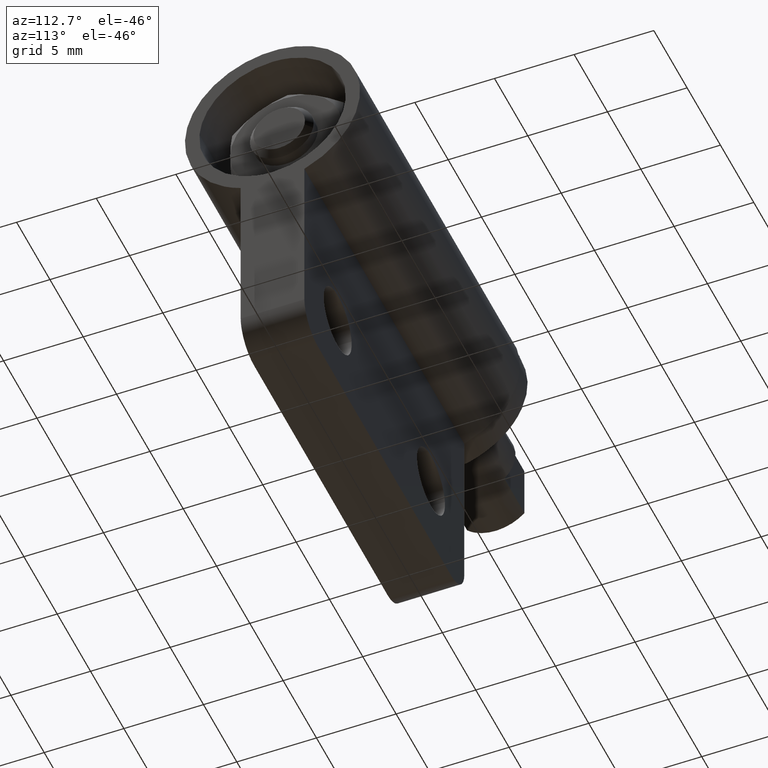
[diagram: clean part render]
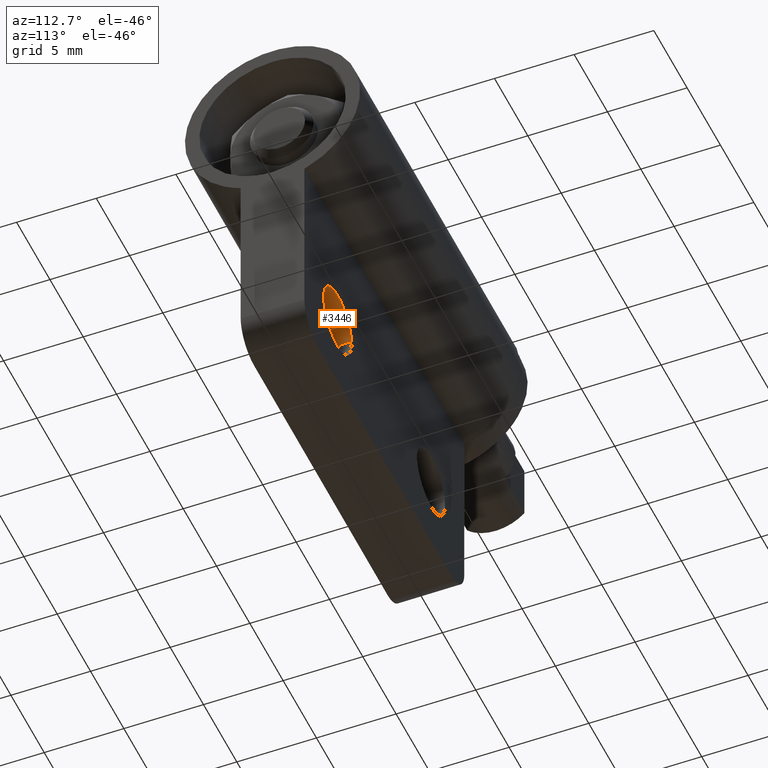
[diagram: same view with one face highlighted and labeled with its STEP entity id]
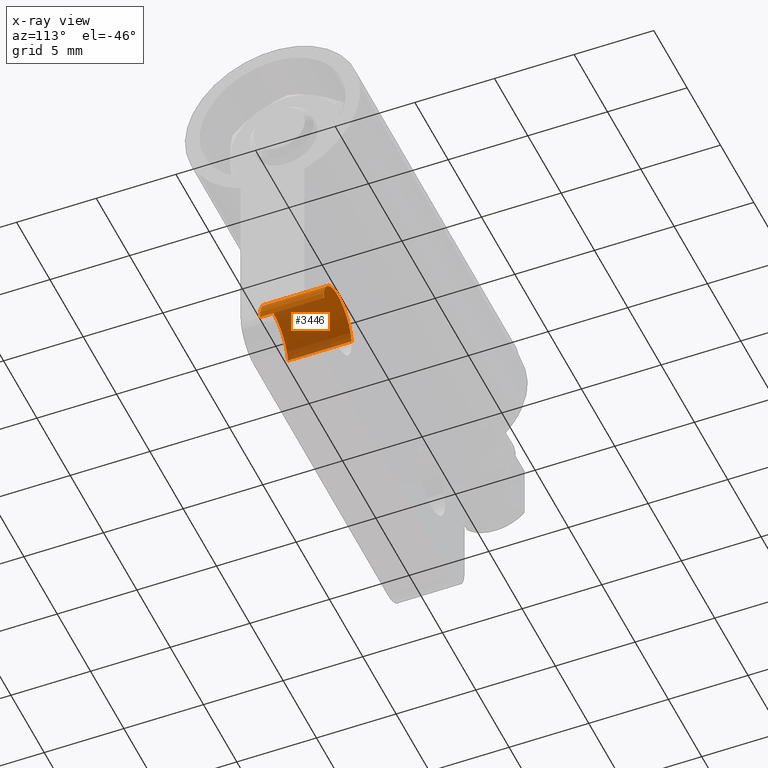
[diagram: x-ray of the same camera — body ghosted, the highlighted face saturated]
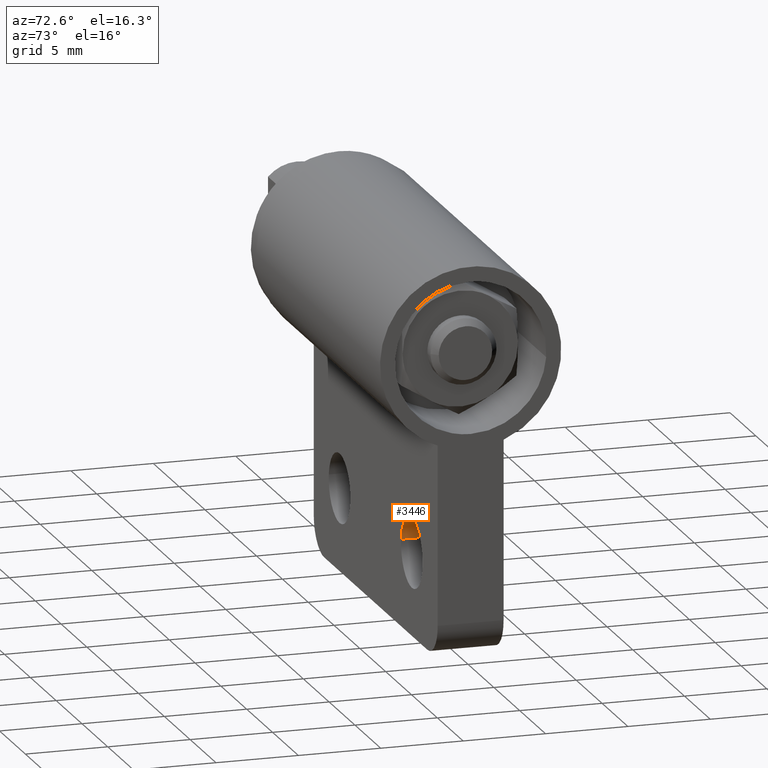
[diagram: same view with one face highlighted and labeled with its STEP entity id]
A machine part, auxiliary view. The second image highlights one B-rep face of the part: STEP entity #3446.
The next image is the same camera in x-ray: the body ghosted, the highlighted face saturated — about 53% of this face is hidden behind the body in this view.
A second angle (auxiliary view) of the same face is appended — the face is thin or edge-on in the first view.
In plain terms, the highlighted face is a freeform B-spline surface patch.
Its self-contained STEP definition (entity closure, byte-faithful):
#3283=CARTESIAN_POINT('',(23.414679958542148,1.999999999999999,-12.752128410877519));
#3284=VERTEX_POINT('',#3283);
#3302=CARTESIAN_POINT('',(23.414679958975899,-2.0,-12.752128407228319));
#3303=VERTEX_POINT('',#3302);
#3304=CARTESIAN_POINT('',(23.414679958542148,1.999999999999999,-12.752128410877519));
#3305=CARTESIAN_POINT('',(23.414679958975899,-2.0,-12.752128407228319));
#3306=QUASI_UNIFORM_CURVE('',1,(#3304,#3305),.UNSPECIFIED.,.F.,.U.);
#3307=EDGE_CURVE('',#3284,#3303,#3306,.T.);
#3326=CARTESIAN_POINT('',(27.596083076684572,-2.0,-13.128201933045361));
#3327=VERTEX_POINT('',#3326);
#3341=CARTESIAN_POINT('',(27.596083076684572,2.0,-13.128201933045361));
#3342=VERTEX_POINT('',#3341);
#3343=CARTESIAN_POINT('',(27.596083076684572,2.0,-13.128201933045361));
#3344=CARTESIAN_POINT('',(27.596083076684572,-2.0,-13.128201933045361));
#3345=QUASI_UNIFORM_CURVE('',1,(#3343,#3344),.UNSPECIFIED.,.F.,.U.);
#3346=EDGE_CURVE('',#3342,#3327,#3345,.T.);
#3364=CARTESIAN_POINT('',(27.596083076685922,2.100000000000000,-13.128201933023201));
#3365=CARTESIAN_POINT('',(27.724285009709124,2.100000000000000,-11.032118856337279));
#3366=CARTESIAN_POINT('',(25.628201933023199,2.100000000000000,-10.903916923314080));
#3367=CARTESIAN_POINT('',(23.648758669237040,2.100000000000000,-10.782848986861692));
#3368=CARTESIAN_POINT('',(23.414679994636302,2.100000000000000,-12.752128107220809));
#3369=CARTESIAN_POINT('',(27.596083076685922,-2.102500000000000,-13.128201933023201));
#3370=CARTESIAN_POINT('',(27.724285009709124,-2.102500000000000,-11.032118856337279));
#3371=CARTESIAN_POINT('',(25.628201933023199,-2.102500000000000,-10.903916923314080));
#3372=CARTESIAN_POINT('',(23.648758669237040,-2.102500000000001,-10.782848986861692));
#3373=CARTESIAN_POINT('',(23.414679994636302,-2.102500000000000,-12.752128107220809));
#3381=(BOUNDED_SURFACE()B_SPLINE_SURFACE(2,1,((#3364,#3369),(#3365,#3370),(#3366,#3371),(#3367,#3372),(#3368,#3373)),.UNSPECIFIED.,.F.,.F.,.U.)B_SPLINE_SURFACE_WITH_KNOTS((3,2,3),(2,2),(0.0,3.479393923933997,6.819612090910635),(0.0,4.202500000000001),.UNSPECIFIED.)GEOMETRIC_REPRESENTATION_ITEM()RATIONAL_B_SPLINE_SURFACE(((1.0,1.0),(0.707106781186548,0.707106781186548),(1.0,1.0),(0.718822509939086,0.718822509939086),(0.977505800795127,0.977505800795127)))REPRESENTATION_ITEM('')SURFACE());
#3382=CARTESIAN_POINT('',(25.500000000000000,2.0,-10.900000000000000));
#3383=VERTEX_POINT('',#3382);
#3384=CARTESIAN_POINT('',(25.500000000000000,2.0,-10.900000000000000));
#3385=CARTESIAN_POINT('',(23.634832948480597,2.0,-10.899999999999999));
#3386=CARTESIAN_POINT('',(23.414679958542148,2.000000000000000,-12.752128410877519));
#3394=(BOUNDED_CURVE()B_SPLINE_CURVE(2,(#3384,#3385,#3386),.UNSPECIFIED.,.F.,.U.)B_SPLINE_CURVE_WITH_KNOTS((3,3),(0.0,0.229562522734923),.UNSPECIFIED.)CURVE()GEOMETRIC_REPRESENTATION_ITEM()RATIONAL_B_SPLINE_CURVE((1.0,0.731050775188928,0.956026850659709))REPRESENTATION_ITEM(''));
#3395=EDGE_CURVE('',#3383,#3284,#3394,.T.);
#3396=ORIENTED_EDGE('',*,*,#3395,.F.);
#3397=CARTESIAN_POINT('',(27.596083076684568,2.0,-13.128201933045359));
#3398=CARTESIAN_POINT('',(27.599999999999998,2.000000000000000,-13.064160802949258));
#3399=CARTESIAN_POINT('',(27.600000000000001,2.0,-13.0));
#3400=CARTESIAN_POINT('',(27.599999999999994,2.000000000000000,-10.900000000000000));
#3401=CARTESIAN_POINT('',(25.500000000000000,2.0,-10.900000000000000));
#3409=(BOUNDED_CURVE()B_SPLINE_CURVE(2,(#3397,#3398,#3399,#3400,#3401),.UNSPECIFIED.,.F.,.U.)B_SPLINE_CURVE_WITH_KNOTS((3,2,3),(0.739332962238320,0.750000000000000,1.0),.UNSPECIFIED.)CURVE()GEOMETRIC_REPRESENTATION_ITEM()RATIONAL_B_SPLINE_CURVE((0.976072041665383,0.987502787899108,1.0,0.707106781186548,1.0))REPRESENTATION_ITEM(''));
#3410=EDGE_CURVE('',#3342,#3383,#3409,.T.);
#3411=ORIENTED_EDGE('',*,*,#3410,.F.);
#3412=ORIENTED_EDGE('',*,*,#3346,.T.);
#3413=CARTESIAN_POINT('',(25.500000000000000,-2.0,-10.900000000000000));
#3414=VERTEX_POINT('',#3413);
#3415=CARTESIAN_POINT('',(27.596083076684565,-2.000000000000000,-13.128201933045355));
#3416=CARTESIAN_POINT('',(27.600000000000001,-2.000000000000000,-13.064160802949258));
#3417=CARTESIAN_POINT('',(27.600000000000001,-2.0,-13.0));
#3418=CARTESIAN_POINT('',(27.599999999999994,-2.000000000000000,-10.900000000000000));
#3419=CARTESIAN_POINT('',(25.500000000000000,-2.0,-10.900000000000000));
#3427=(BOUNDED_CURVE()B_SPLINE_CURVE(2,(#3415,#3416,#3417,#3418,#3419),.UNSPECIFIED.,.F.,.U.)B_SPLINE_CURVE_WITH_KNOTS((3,2,3),(0.739332962238320,0.750000000000000,1.0),.UNSPECIFIED.)CURVE()GEOMETRIC_REPRESENTATION_ITEM()RATIONAL_B_SPLINE_CURVE((0.976072041665383,0.987502787899108,1.0,0.707106781186548,1.0))REPRESENTATION_ITEM(''));
#3428=EDGE_CURVE('',#3327,#3414,#3427,.T.);
#3429=ORIENTED_EDGE('',*,*,#3428,.T.);
#3430=CARTESIAN_POINT('',(25.500000000000000,-2.0,-10.900000000000000));
#3431=CARTESIAN_POINT('',(23.634832955054442,-2.000000000000000,-10.900000000000000));
#3432=CARTESIAN_POINT('',(23.414679958975899,-2.000000000000000,-12.752128407228323));
#3440=(BOUNDED_CURVE()B_SPLINE_CURVE(2,(#3430,#3431,#3432),.UNSPECIFIED.,.F.,.U.)B_SPLINE_CURVE_WITH_KNOTS((3,3),(0.0,0.229562522143430),.UNSPECIFIED.)CURVE()GEOMETRIC_REPRESENTATION_ITEM()RATIONAL_B_SPLINE_CURVE((1.0,0.731050775881906,0.956026849500357))REPRESENTATION_ITEM(''));
#3441=EDGE_CURVE('',#3414,#3303,#3440,.T.);
#3442=ORIENTED_EDGE('',*,*,#3441,.T.);
#3443=ORIENTED_EDGE('',*,*,#3307,.F.);
#3444=EDGE_LOOP('',(#3396,#3411,#3412,#3429,#3442,#3443));
#3445=FACE_OUTER_BOUND('',#3444,.T.);
#3446=ADVANCED_FACE('',(#3445),#3381,.F.);